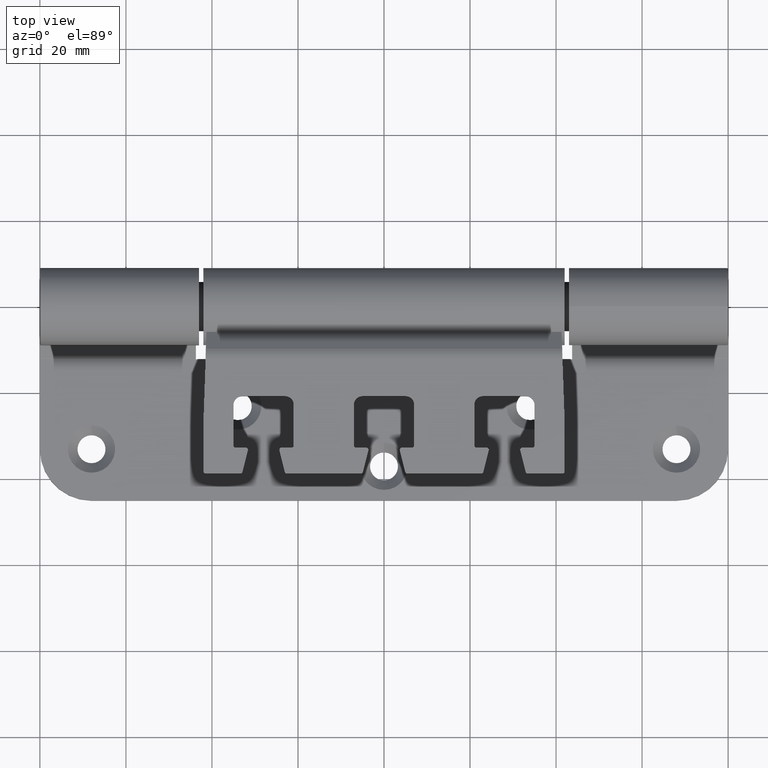
[diagram: clean part render]
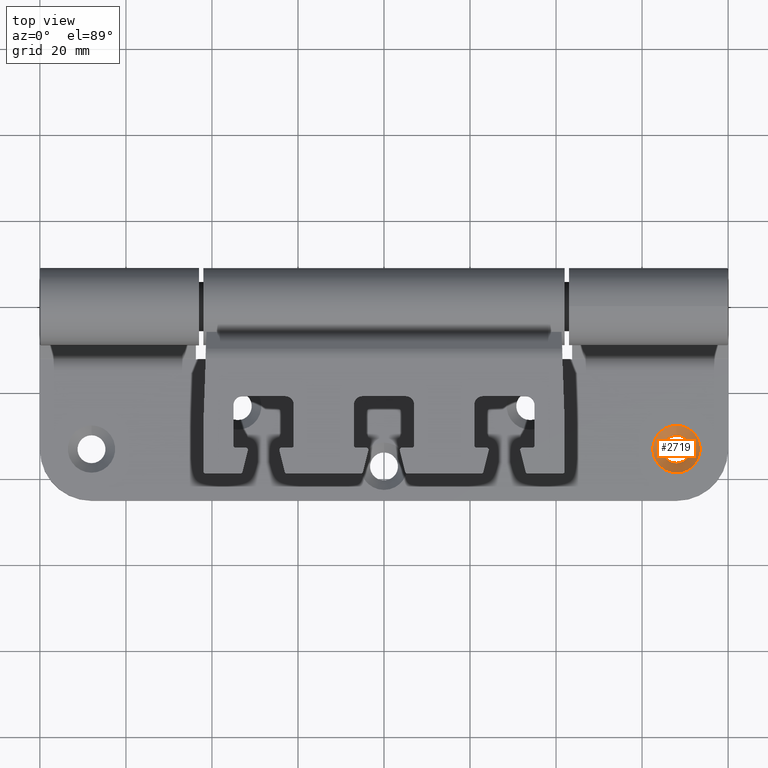
[diagram: same view with one face highlighted and labeled with its STEP entity id]
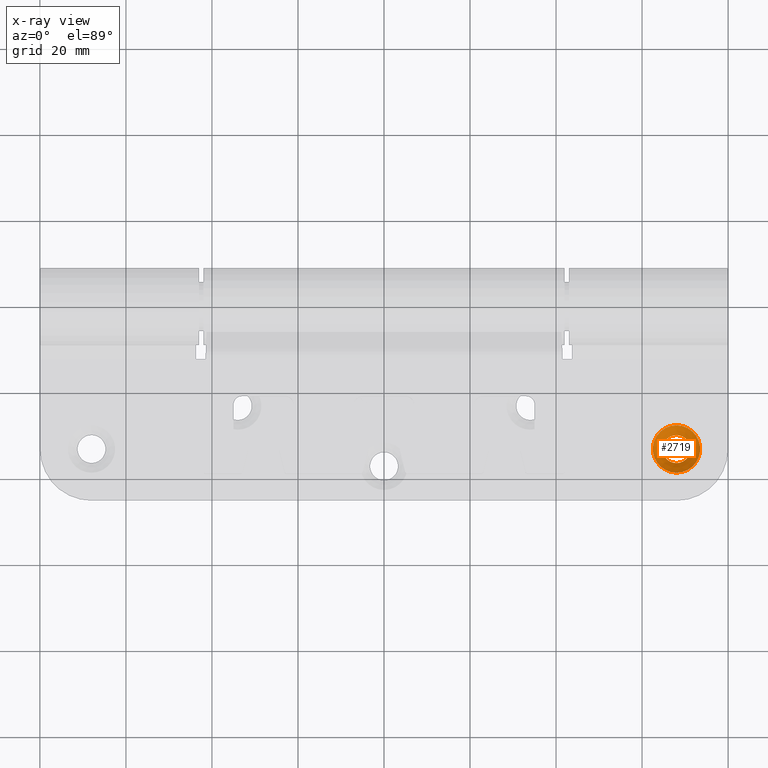
[diagram: x-ray of the same camera — body ghosted, the highlighted face saturated]
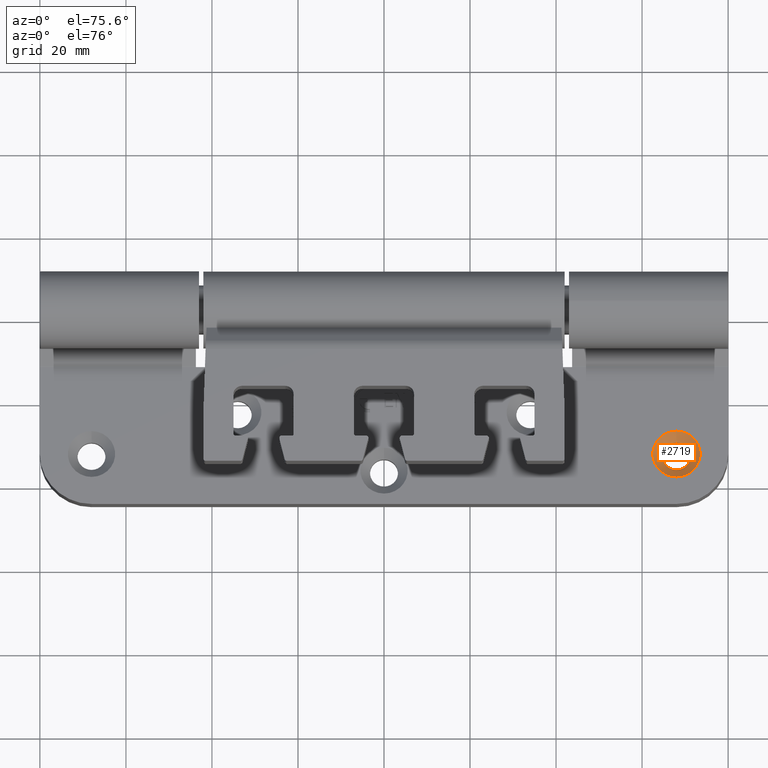
[diagram: same view with one face highlighted and labeled with its STEP entity id]
A machine part, top view. The second image highlights one B-rep face of the part: STEP entity #2719.
The next image is the same camera in x-ray: the body ghosted, the highlighted face saturated — about 0% of this face is hidden behind the body in this view.
A second angle (auxiliary view) of the same face is appended — the face is thin or edge-on in the first view.
In plain terms, the highlighted conical surface has half-angle 45 deg.
Its self-contained STEP definition (entity closure, byte-faithful):
#592 = VERTEX_POINT ( 'NONE', #10346 ) ;
#890 = DIRECTION ( 'NONE',  ( 0.0000000000000000000, 0.0000000000000000000, 1.000000000000000000 ) ) ;
#893 = EDGE_LOOP ( 'NONE', ( #10929 ) ) ;
#2382 = CIRCLE ( 'NONE', #5927, 5.500000000000025800 ) ;
#2626 = EDGE_CURVE ( 'NONE', #592, #592, #2382, .T. ) ;
#2719 = ADVANCED_FACE ( 'NONE', ( #10828, #14130 ), #8390, .F. ) ;
#2743 = AXIS2_PLACEMENT_3D ( 'NONE', #7533, #3281, #3176 ) ;
#2941 = DIRECTION ( 'NONE',  ( -1.000000000000000000, -5.238529448733262900E-032, 4.930380657631306300E-032 ) ) ;
#3176 = DIRECTION ( 'NONE',  ( 0.0000000000000000000, 0.0000000000000000000, 1.000000000000000000 ) ) ;
#3281 = DIRECTION ( 'NONE',  ( -1.000000000000000000, -5.238529448733262900E-032, 4.930380657631306300E-032 ) ) ;
#5383 = CIRCLE ( 'NONE', #2743, 3.250000000000013300 ) ;
#5927 = AXIS2_PLACEMENT_3D ( 'NONE', #8830, #12134, #13257 ) ;
#7192 = CARTESIAN_POINT ( 'NONE',  ( 8.250000000000021300, -68.00000000000000000, -29.75000000000005700 ) ) ;
#7533 = CARTESIAN_POINT ( 'NONE',  ( 8.250000000000021300, -68.00000000000000000, -33.00000000000007100 ) ) ;
#8390 = CONICAL_SURFACE ( 'NONE', #13252, 5.500000000000025800, 0.7853981633974488300 ) ;
#8830 = CARTESIAN_POINT ( 'NONE',  ( 6.000000000000022200, -68.00000000000000000, -33.00000000000007100 ) ) ;
#10346 = CARTESIAN_POINT ( 'NONE',  ( 6.000000000000022200, -68.00000000000000000, -27.50000000000004600 ) ) ;
#10533 = VERTEX_POINT ( 'NONE', #7192 ) ;
#10823 = EDGE_LOOP ( 'NONE', ( #11039 ) ) ;
#10828 = FACE_BOUND ( 'NONE', #10823, .T. ) ;
#10929 = ORIENTED_EDGE ( 'NONE', *, *, #2626, .T. ) ;
#11039 = ORIENTED_EDGE ( 'NONE', *, *, #12876, .F. ) ;
#12134 = DIRECTION ( 'NONE',  ( -1.000000000000000000, -5.238529448733262900E-032, 4.930380657631306300E-032 ) ) ;
#12876 = EDGE_CURVE ( 'NONE', #10533, #10533, #5383, .T. ) ;
#12991 = CARTESIAN_POINT ( 'NONE',  ( 6.000000000000022200, -68.00000000000000000, -33.00000000000007100 ) ) ;
#13252 = AXIS2_PLACEMENT_3D ( 'NONE', #12991, #2941, #890 ) ;
#13257 = DIRECTION ( 'NONE',  ( 0.0000000000000000000, 0.0000000000000000000, 1.000000000000000000 ) ) ;
#14130 = FACE_OUTER_BOUND ( 'NONE', #893, .T. ) ;